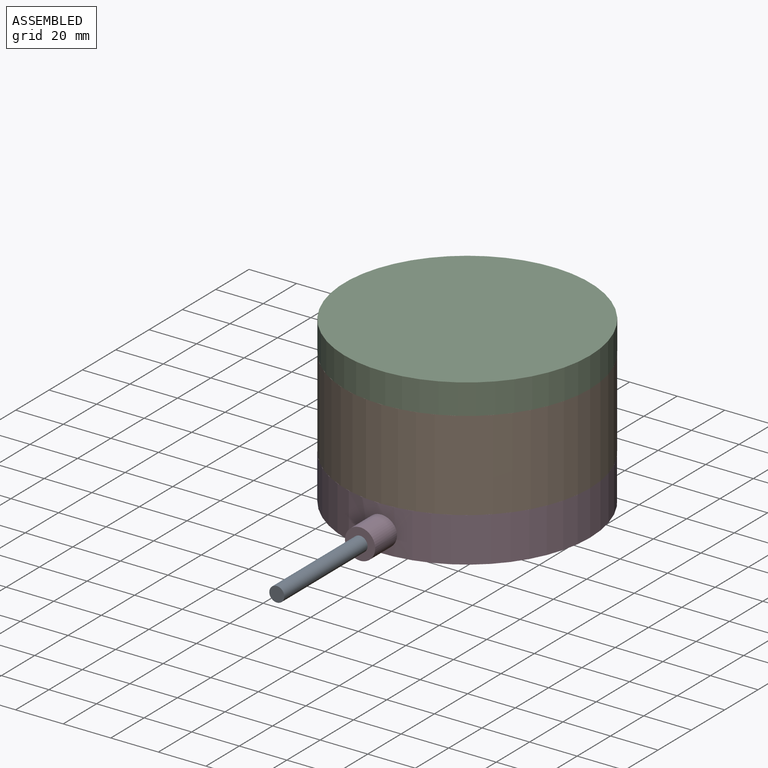
[diagram: assembled view]
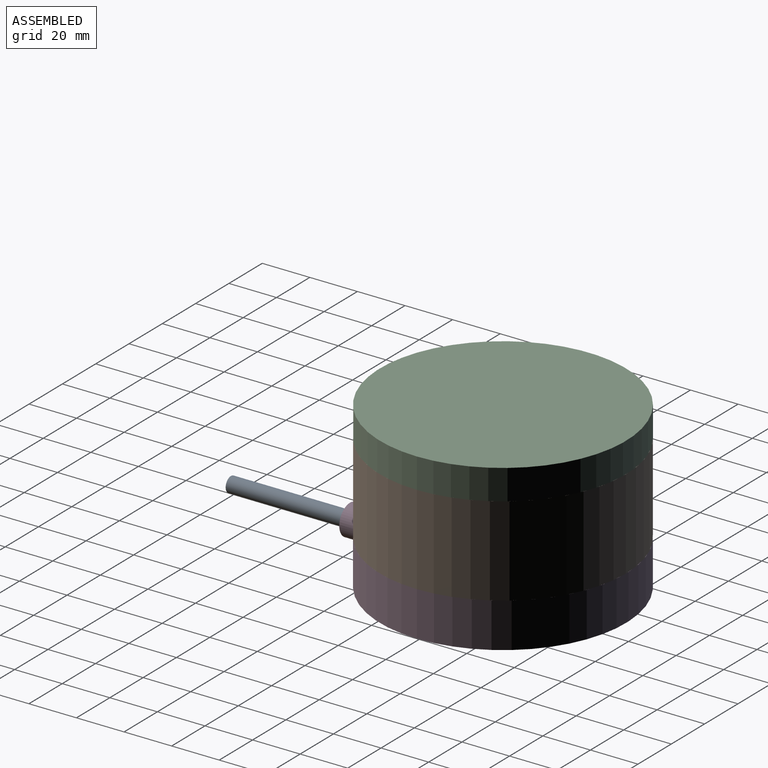
[diagram: assembled view, second angle]
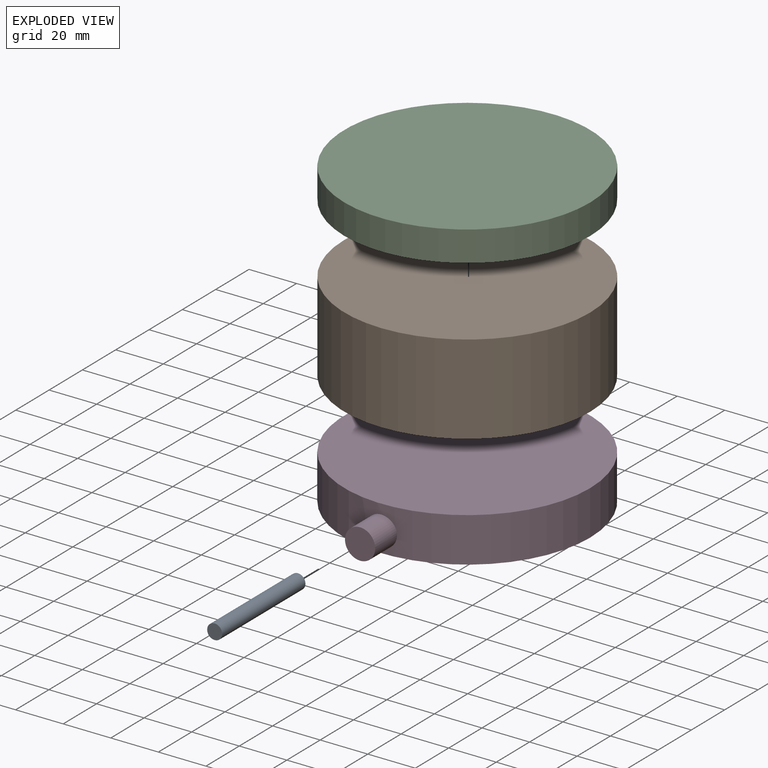
[diagram: exploded view]
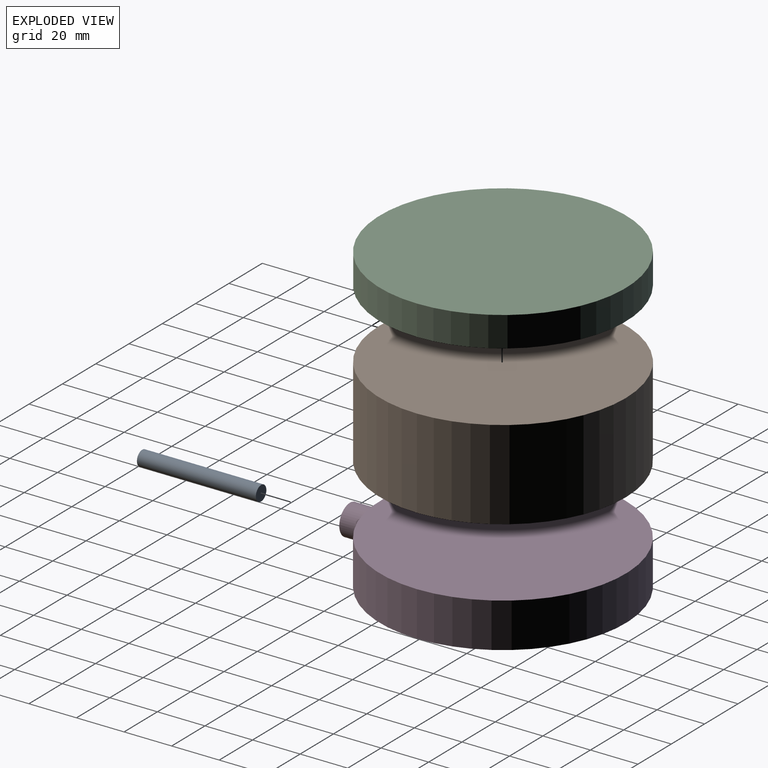
[diagram: exploded view, second angle]
ASSEMBLY  parts=4 mates=4
PART A: 3 faces, bbox 6.3x50x6.3 mm
  f0: cylinder r=3.15mm len=50mm, axis (0,1,0), area 989.6mm2, adj f1,f2
  f1: plane 6.3x6.3mm, normal (0,-1,0), area 31.2mm2, adj f0
  f2: plane 6.3x6.3mm, normal (0,1,0), area 31.2mm2, adj f0
PART B: 3 faces, bbox 103.3x103.3x37.7 mm
  f0: cylinder r=51.65mm len=103.3mm, axis (0,0,-1), area 12234.6mm2, adj f1,f2
  f1: plane 103.3x103.3mm, normal (0,0,1), area 8380.9mm2, adj f0
  f2: plane 103.3x103.3mm, normal (0,0,-1), area 8380.9mm2, adj f0
PART C: 3 faces, bbox 103.3x103.3x12.7 mm
  f0: cylinder r=51.65mm len=103.3mm, axis (0,0,-1), area 4121.5mm2, adj f1,f2
  f1: plane 103.3x103.3mm, normal (0,0,1), area 8380.9mm2, adj f0
  f2: plane 103.3x103.3mm, normal (0,0,-1), area 8380.9mm2, adj f0
PART D: 5 faces, bbox 103.3x116x18.8 mm
  f0: cylinder r=51.65mm len=103.3mm, axis (0,0,-1), area 5973.9mm2, adj f1,f2,f4
  f1: plane 103.3x103.3mm, normal (0,0,1), area 8380.9mm2, adj f0
  f2: plane 103.3x103.3mm, normal (0,0,-1), area 8380.9mm2, adj f0
  f3: plane 12.7x12.7mm, normal (0,-1,0), area 126.7mm2, adj f4
  f4: cylinder r=6.35mm len=13.09mm, axis (0,1,0), area 514.5mm2, adj f0,f3
PLACE A rot(axis=(1,0,0),180deg) t=(33.79,-91.46,-2.43)mm
PLACE B t=(33.79,22.89,8.02)mm
PLACE C t=(33.79,22.89,45.72)mm
PLACE D t=(33.79,22.89,-10.78)mm
MATE planar A.f0 <-> D.f4  axis (0,1,0) through (33.79,-41.46,-2.43)mm
MATE cylindrical A.f0 <-> D.f4  axis (0,-1,0) through (33.79,-66.46,-2.43)mm
MATE fastened C.f0 <-> B.f0  axis (0,0,-1) through (33.79,22.89,45.72)mm
MATE fastened D.f0 <-> B.f0  axis (0,0,1) through (33.79,22.89,8.02)mm
